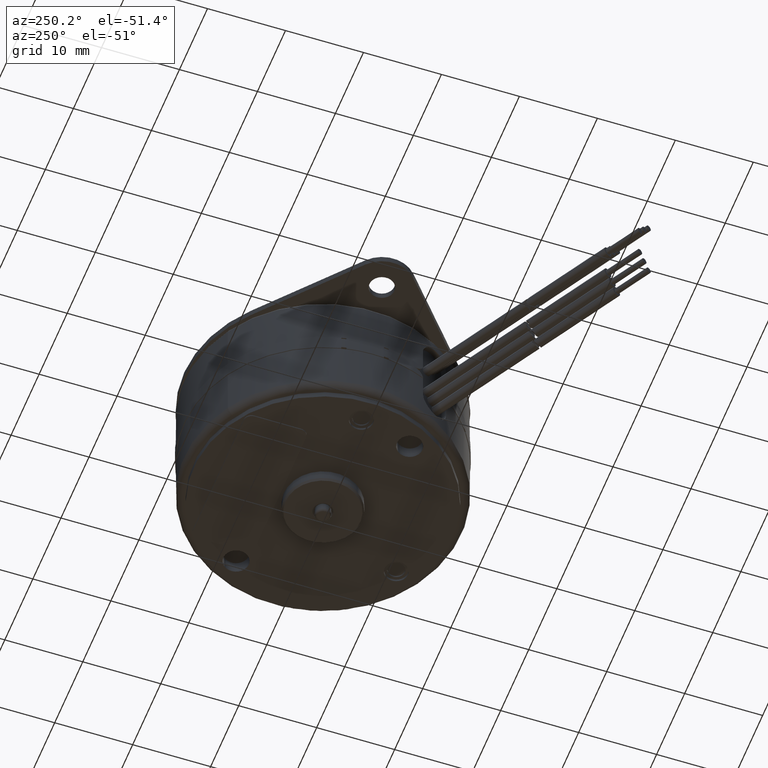
[diagram: clean part render]
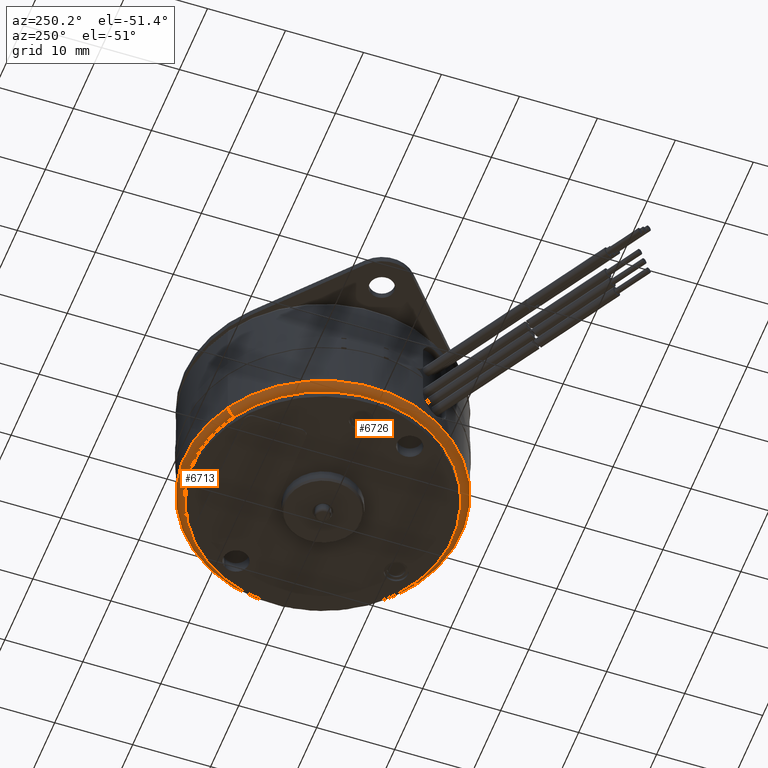
[diagram: same view with one multi-face feature highlighted, each face labeled with its STEP entity id]
A machine part, auxiliary view. The highlighted faces form ONE feature: a constant-radius fillet chain: 2 tangent blend faces with common blend radius 1.1938 mm. The faces share edges in the B-rep.
Their STEP definitions:
[1] entity #6726 (Torus):
#1856=CARTESIAN_POINT('',(0.E0,0.E0,-2.895227116419E-1));
#1857=DIRECTION('',(0.E0,0.E0,1.E0));
#1858=DIRECTION('',(-5.E-1,8.660254037844E-1,0.E0));
#1859=AXIS2_PLACEMENT_3D('',#1856,#1857,#1858);
#1861=CARTESIAN_POINT('',(3.277500000002E-1,-5.676796521806E-1,-2.73E-1));
#1862=DIRECTION('',(8.660254037843E-1,5.000000000003E-1,0.E0));
#1863=DIRECTION('',(4.680851063831E-1,-8.107471865212E-1,-3.515470562105E-1));
#1864=AXIS2_PLACEMENT_3D('',#1861,#1862,#1863);
#1866=CARTESIAN_POINT('',(-3.277500000001E-1,5.676796521807E-1,-2.73E-1));
#1867=DIRECTION('',(8.660254037844E-1,5.000000000001E-1,0.E0));
#1868=DIRECTION('',(0.E0,0.E0,-1.E0));
#1869=AXIS2_PLACEMENT_3D('',#1866,#1867,#1868);
#1871=CARTESIAN_POINT('',(0.E0,0.E0,-3.2E-1));
#1872=DIRECTION('',(0.E0,0.E0,1.E0));
#1873=DIRECTION('',(-5.000000000001E-1,8.660254037844E-1,0.E0));
#1874=AXIS2_PLACEMENT_3D('',#1871,#1872,#1873);
#3607=CARTESIAN_POINT('',(3.497500000001E-1,-6.057847699471E-1,
-2.895227116419E-1));
#3608=VERTEX_POINT('',#3607);
#3609=CARTESIAN_POINT('',(-3.4975E-1,6.057847699472E-1,-2.895227116419E-1));
#3610=VERTEX_POINT('',#3609);
#4253=CARTESIAN_POINT('',(-3.277500000001E-1,5.676796521807E-1,-3.2E-1));
#4254=VERTEX_POINT('',#4253);
#4255=CARTESIAN_POINT('',(3.2775E-1,-5.676796521807E-1,-3.2E-1));
#4256=VERTEX_POINT('',#4255);
#6714=CARTESIAN_POINT('',(0.E0,0.E0,-2.73E-1));
#6715=DIRECTION('',(0.E0,0.E0,1.E0));
#6716=DIRECTION('',(-5.000000000001E-1,8.660254037844E-1,0.E0));
#6717=AXIS2_PLACEMENT_3D('',#6714,#6715,#6716);
#6718=TOROIDAL_SURFACE('',#6717,6.555E-1,4.7E-2);
#6719=ORIENTED_EDGE('',*,*,#5425,.T.);
#6720=ORIENTED_EDGE('',*,*,#6709,.T.);
#6722=ORIENTED_EDGE('',*,*,#6721,.F.);
#6723=ORIENTED_EDGE('',*,*,#6705,.T.);
#6724=EDGE_LOOP('',(#6719,#6720,#6722,#6723));
#6725=FACE_OUTER_BOUND('',#6724,.F.);
#6726=ADVANCED_FACE('',(#6725),#6718,.T.);
#1860=CIRCLE('',#1859,6.995E-1);
#1865=CIRCLE('',#1864,4.7E-2);
#1870=CIRCLE('',#1869,4.7E-2);
#1875=CIRCLE('',#1874,6.555E-1);
#5425=EDGE_CURVE('',#3610,#3608,#1860,.T.);
#6705=EDGE_CURVE('',#4254,#3610,#1870,.T.);
#6709=EDGE_CURVE('',#3608,#4256,#1865,.T.);
#6721=EDGE_CURVE('',#4254,#4256,#1875,.T.);
[2] entity #6713 (Torus):
#1851=CARTESIAN_POINT('',(0.E0,0.E0,-2.895227116419E-1));
#1852=DIRECTION('',(0.E0,0.E0,1.E0));
#1853=DIRECTION('',(5.000000000001E-1,-8.660254037844E-1,0.E0));
#1854=AXIS2_PLACEMENT_3D('',#1851,#1852,#1853);
#1861=CARTESIAN_POINT('',(3.277500000002E-1,-5.676796521806E-1,-2.73E-1));
#1862=DIRECTION('',(8.660254037843E-1,5.000000000003E-1,0.E0));
#1863=DIRECTION('',(4.680851063831E-1,-8.107471865212E-1,-3.515470562105E-1));
#1864=AXIS2_PLACEMENT_3D('',#1861,#1862,#1863);
#1866=CARTESIAN_POINT('',(-3.277500000001E-1,5.676796521807E-1,-2.73E-1));
#1867=DIRECTION('',(8.660254037844E-1,5.000000000001E-1,0.E0));
#1868=DIRECTION('',(0.E0,0.E0,-1.E0));
#1869=AXIS2_PLACEMENT_3D('',#1866,#1867,#1868);
#1876=CARTESIAN_POINT('',(0.E0,0.E0,-3.2E-1));
#1877=DIRECTION('',(0.E0,0.E0,1.E0));
#1878=DIRECTION('',(5.E-1,-8.660254037844E-1,0.E0));
#1879=AXIS2_PLACEMENT_3D('',#1876,#1877,#1878);
#3607=CARTESIAN_POINT('',(3.497500000001E-1,-6.057847699471E-1,
-2.895227116419E-1));
#3608=VERTEX_POINT('',#3607);
#3609=CARTESIAN_POINT('',(-3.4975E-1,6.057847699472E-1,-2.895227116419E-1));
#3610=VERTEX_POINT('',#3609);
#4253=CARTESIAN_POINT('',(-3.277500000001E-1,5.676796521807E-1,-3.2E-1));
#4254=VERTEX_POINT('',#4253);
#4255=CARTESIAN_POINT('',(3.2775E-1,-5.676796521807E-1,-3.2E-1));
#4256=VERTEX_POINT('',#4255);
#6699=CARTESIAN_POINT('',(0.E0,0.E0,-2.73E-1));
#6700=DIRECTION('',(0.E0,0.E0,1.E0));
#6701=DIRECTION('',(-5.000000000001E-1,8.660254037844E-1,0.E0));
#6702=AXIS2_PLACEMENT_3D('',#6699,#6700,#6701);
#6703=TOROIDAL_SURFACE('',#6702,6.555E-1,4.7E-2);
#6704=ORIENTED_EDGE('',*,*,#6482,.T.);
#6706=ORIENTED_EDGE('',*,*,#6705,.F.);
#6708=ORIENTED_EDGE('',*,*,#6707,.F.);
#6710=ORIENTED_EDGE('',*,*,#6709,.F.);
#6711=EDGE_LOOP('',(#6704,#6706,#6708,#6710));
#6712=FACE_OUTER_BOUND('',#6711,.F.);
#6713=ADVANCED_FACE('',(#6712),#6703,.T.);
#1855=CIRCLE('',#1854,6.995E-1);
#1865=CIRCLE('',#1864,4.7E-2);
#1870=CIRCLE('',#1869,4.7E-2);
#1880=CIRCLE('',#1879,6.555E-1);
#6482=EDGE_CURVE('',#3608,#3610,#1855,.T.);
#6705=EDGE_CURVE('',#4254,#3610,#1870,.T.);
#6707=EDGE_CURVE('',#4256,#4254,#1880,.T.);
#6709=EDGE_CURVE('',#3608,#4256,#1865,.T.);